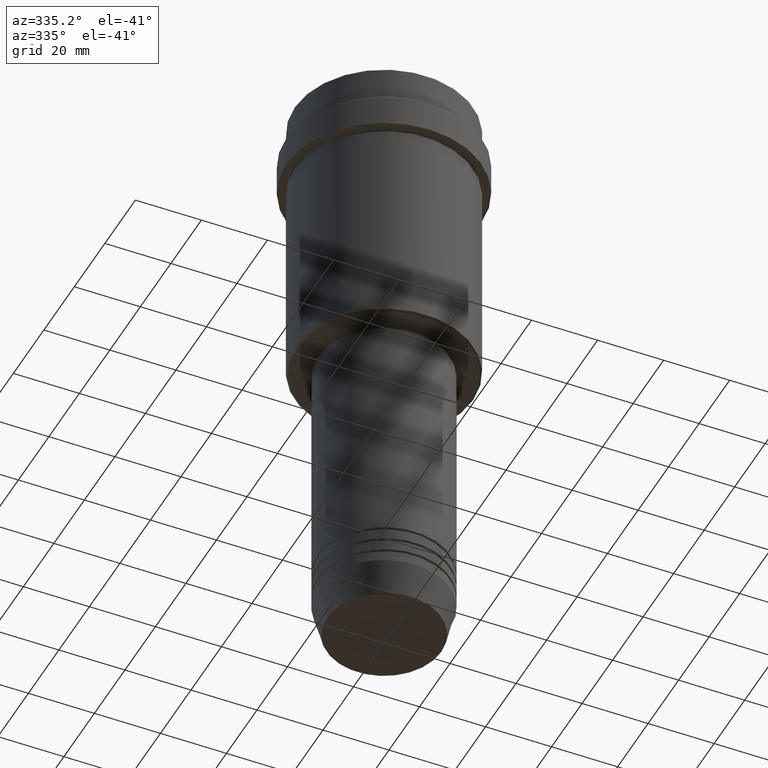
[diagram: clean part render]
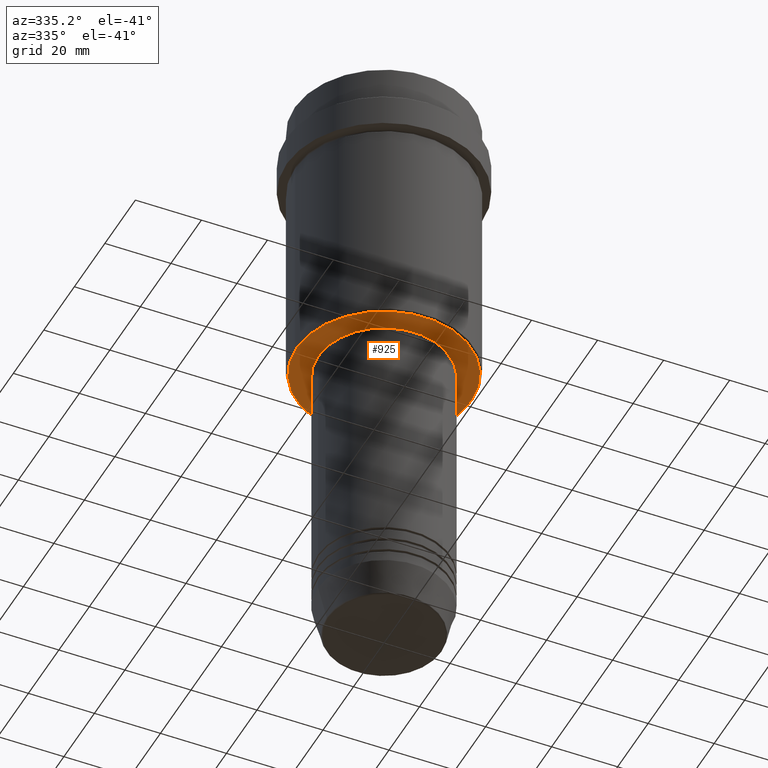
[diagram: same view with one face highlighted and labeled with its STEP entity id]
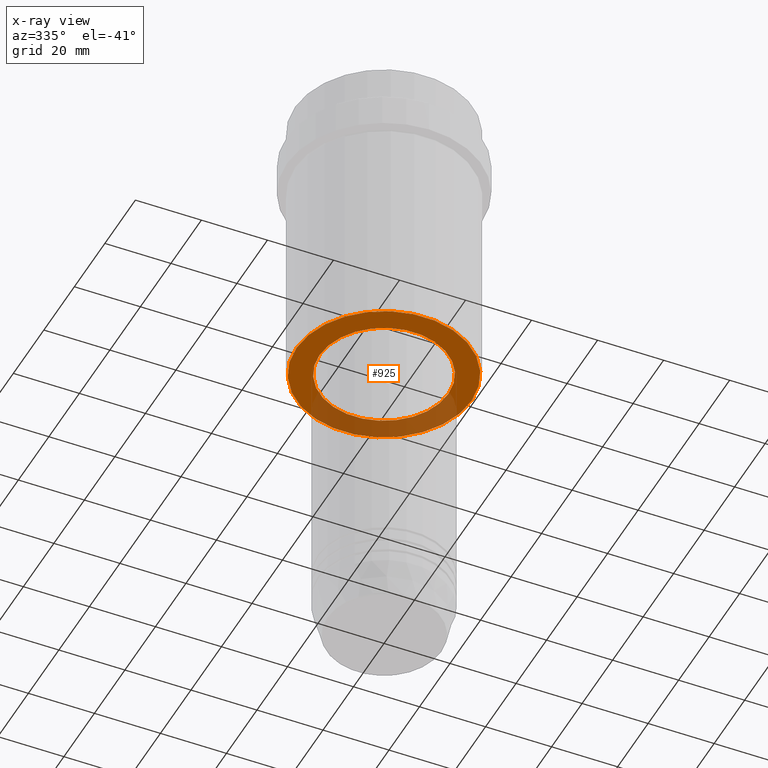
[diagram: x-ray of the same camera — body ghosted, the highlighted face saturated]
A machine part, auxiliary view. The second image highlights one B-rep face of the part: STEP entity #925.
The next image is the same camera in x-ray: the body ghosted, the highlighted face saturated — about 32% of this face is hidden behind the body in this view.
In plain terms, the highlighted planar face has unit normal (0, 0, -1).
Its self-contained STEP definition (entity closure, byte-faithful):
#12 = AXIS2_PLACEMENT_3D ( 'NONE', #853, #503, #1283 ) ;
#39 = DIRECTION ( 'NONE',  ( -0.000000000000000000, -0.000000000000000000, 1.000000000000000000 ) ) ;
#45 = EDGE_LOOP ( 'NONE', ( #976, #325 ) ) ;
#71 = CIRCLE ( 'NONE', #919, 19.49999999999999289 ) ;
#145 = PLANE ( 'NONE',  #690 ) ;
#163 = DIRECTION ( 'NONE',  ( 0.000000000000000000, 0.000000000000000000, -1.000000000000000000 ) ) ;
#240 = EDGE_CURVE ( 'NONE', #281, #685, #569, .T. ) ;
#252 = DIRECTION ( 'NONE',  ( 0.000000000000000000, 0.000000000000000000, -1.000000000000000000 ) ) ;
#281 = VERTEX_POINT ( 'NONE', #1177 ) ;
#325 = ORIENTED_EDGE ( 'NONE', *, *, #340, .T. ) ;
#340 = EDGE_CURVE ( 'NONE', #383, #1151, #504, .T. ) ;
#383 = VERTEX_POINT ( 'NONE', #767 ) ;
#414 = AXIS2_PLACEMENT_3D ( 'NONE', #1403, #1204, #746 ) ;
#442 = ORIENTED_EDGE ( 'NONE', *, *, #240, .T. ) ;
#473 = FACE_OUTER_BOUND ( 'NONE', #45, .T. ) ;
#503 = DIRECTION ( 'NONE',  ( -0.000000000000000000, -0.000000000000000000, 1.000000000000000000 ) ) ;
#504 = CIRCLE ( 'NONE', #534, 26.50000000000001066 ) ;
#534 = AXIS2_PLACEMENT_3D ( 'NONE', #849, #163, #1378 ) ;
#569 = CIRCLE ( 'NONE', #12, 19.49999999999999289 ) ;
#608 = CARTESIAN_POINT ( 'NONE',  ( 19.49999999999999289, 0.000000000000000000, -88.00000000000000000 ) ) ;
#685 = VERTEX_POINT ( 'NONE', #608 ) ;
#690 = AXIS2_PLACEMENT_3D ( 'NONE', #913, #252, #907 ) ;
#746 = DIRECTION ( 'NONE',  ( -1.000000000000000000, 0.000000000000000000, 0.000000000000000000 ) ) ;
#767 = CARTESIAN_POINT ( 'NONE',  ( -26.50000000000001066, 3.275930187719170735E-15, -88.00000000000000000 ) ) ;
#769 = CARTESIAN_POINT ( 'NONE',  ( 26.50000000000001066, 0.000000000000000000, -88.00000000000000000 ) ) ;
#811 = CARTESIAN_POINT ( 'NONE',  ( 0.000000000000000000, 0.000000000000000000, -88.00000000000000000 ) ) ;
#849 = CARTESIAN_POINT ( 'NONE',  ( 0.000000000000000000, 0.000000000000000000, -88.00000000000000000 ) ) ;
#853 = CARTESIAN_POINT ( 'NONE',  ( 0.000000000000000000, 0.000000000000000000, -88.00000000000000000 ) ) ;
#894 = CIRCLE ( 'NONE', #414, 26.50000000000001066 ) ;
#907 = DIRECTION ( 'NONE',  ( -1.000000000000000000, 0.000000000000000000, -0.000000000000000000 ) ) ;
#913 = CARTESIAN_POINT ( 'NONE',  ( 0.000000000000000000, 27.00000000000000355, -88.00000000000000000 ) ) ;
#919 = AXIS2_PLACEMENT_3D ( 'NONE', #811, #39, #1128 ) ;
#925 = ADVANCED_FACE ( 'NONE', ( #473, #1014 ), #145, .T. ) ;
#976 = ORIENTED_EDGE ( 'NONE', *, *, #1127, .T. ) ;
#1014 = FACE_BOUND ( 'NONE', #1388, .T. ) ;
#1127 = EDGE_CURVE ( 'NONE', #1151, #383, #894, .T. ) ;
#1128 = DIRECTION ( 'NONE',  ( 1.000000000000000000, 0.000000000000000000, 0.000000000000000000 ) ) ;
#1151 = VERTEX_POINT ( 'NONE', #769 ) ;
#1177 = CARTESIAN_POINT ( 'NONE',  ( -19.49999999999999289, 2.388061258337338150E-15, -88.00000000000000000 ) ) ;
#1188 = ORIENTED_EDGE ( 'NONE', *, *, #1284, .T. ) ;
#1204 = DIRECTION ( 'NONE',  ( 0.000000000000000000, 0.000000000000000000, -1.000000000000000000 ) ) ;
#1283 = DIRECTION ( 'NONE',  ( 1.000000000000000000, 0.000000000000000000, 0.000000000000000000 ) ) ;
#1284 = EDGE_CURVE ( 'NONE', #685, #281, #71, .T. ) ;
#1378 = DIRECTION ( 'NONE',  ( -1.000000000000000000, 0.000000000000000000, 0.000000000000000000 ) ) ;
#1388 = EDGE_LOOP ( 'NONE', ( #1188, #442 ) ) ;
#1403 = CARTESIAN_POINT ( 'NONE',  ( 0.000000000000000000, 0.000000000000000000, -88.00000000000000000 ) ) ;